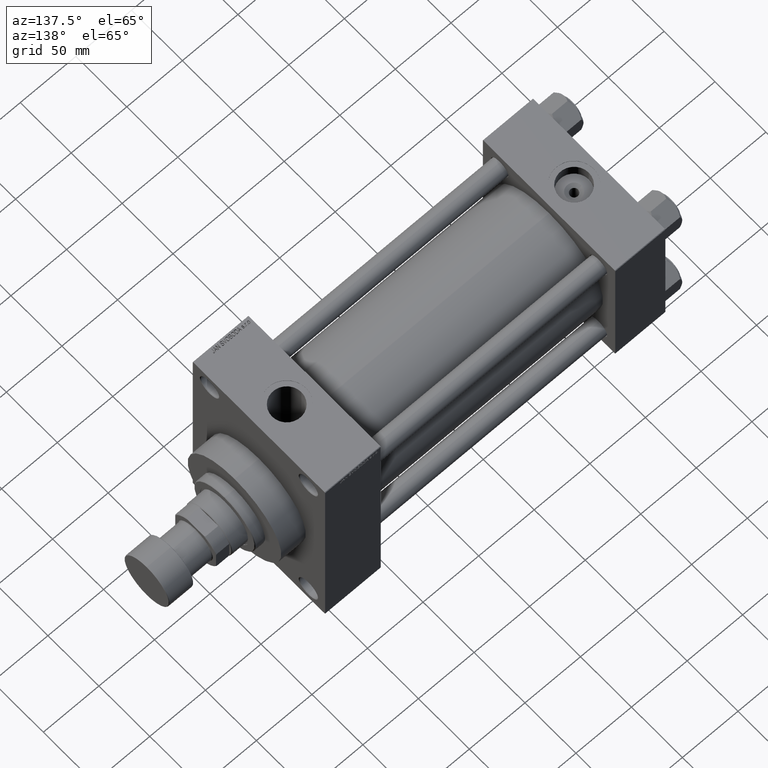
[diagram: clean part render]
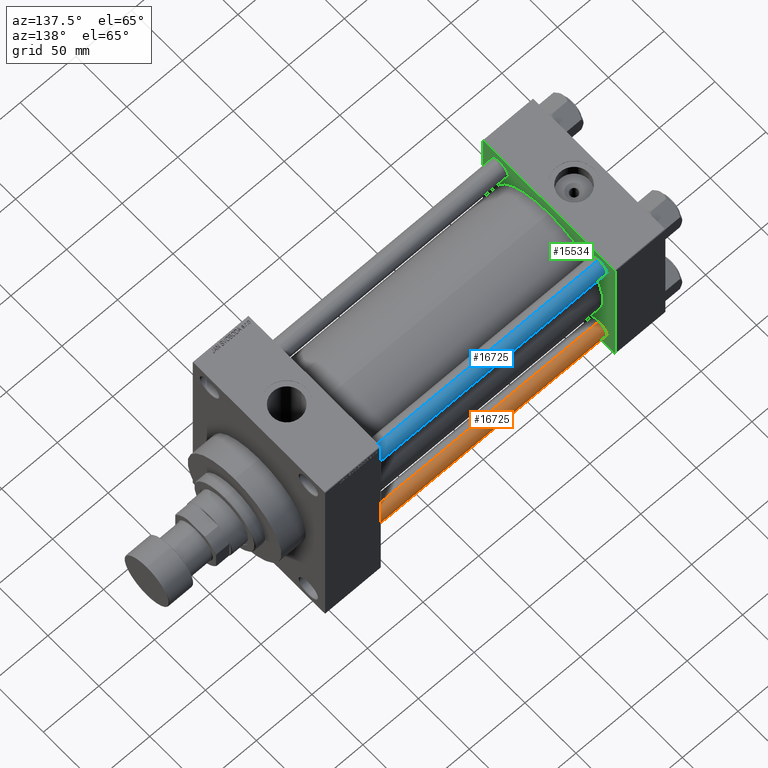
[diagram: same view with three faces highlighted in distinct colors, each labeled with its STEP entity id]
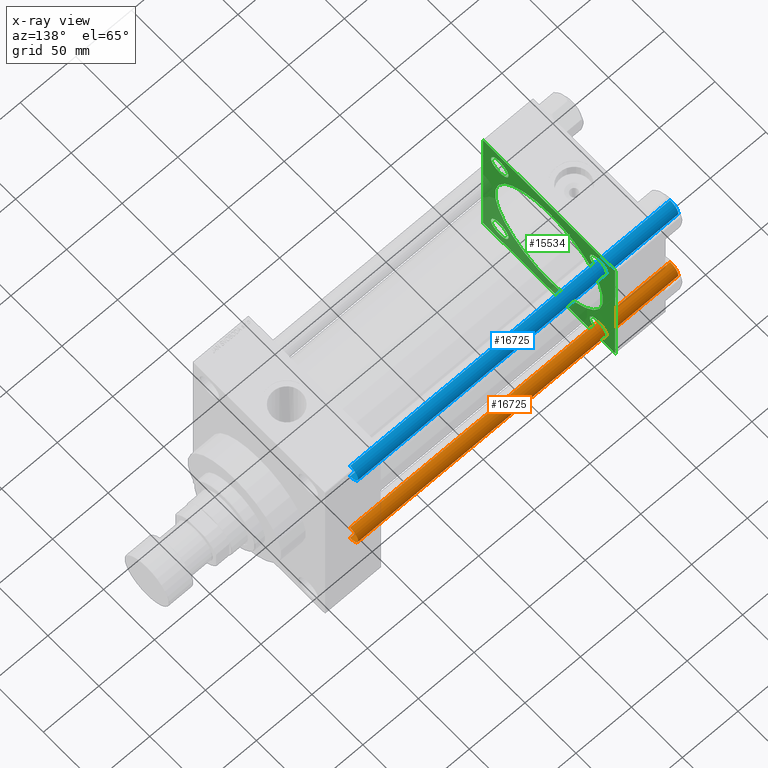
[diagram: x-ray of the same camera — body ghosted, the three highlighted faces saturated]
A machine part, auxiliary view with three faces highlighted in distinct colors.
The next image is the same camera in x-ray (body ghosted, the three faces saturated) — at least one of them is partly hidden behind the body in this view.
Their STEP definitions:

[orange] entity #16725 — the highlighted cylindrical surface (edge-blend (fillet) strip) has radius 8 mm, axis along (-1, -0, 0).
#728 = CARTESIAN_POINT ( 'NONE',  ( 0.000000000000000000, 0.000000000000000000, 289.0000000000000000 ) ) ;
#981 = CARTESIAN_POINT ( 'NONE',  ( -8.000000000000000000, 0.000000000000000000, 288.5000000000000000 ) ) ;
#1441 = CYLINDRICAL_SURFACE ( 'NONE', #22588, 8.000000000000000000 ) ;
#2026 = EDGE_CURVE ( 'NONE', #40422, #38068, #37278, .T. ) ;
#3119 = ORIENTED_EDGE ( 'NONE', *, *, #16728, .F. ) ;
#5101 = DIRECTION ( 'NONE',  ( -0.000000000000000000, -0.000000000000000000, -1.000000000000000000 ) ) ;
#8490 = CARTESIAN_POINT ( 'NONE',  ( -8.000000000000000000, 0.000000000000000000, 0.5000000000000004441 ) ) ;
#8494 = CIRCLE ( 'NONE', #41113, 8.000000000000000000 ) ;
#8529 = FACE_OUTER_BOUND ( 'NONE', #42590, .T. ) ;
#11513 = CARTESIAN_POINT ( 'NONE',  ( 8.000000000000000000, 9.797174393178825657E-16, 289.0000000000000000 ) ) ;
#12165 = DIRECTION ( 'NONE',  ( -1.000000000000000000, 0.000000000000000000, 0.000000000000000000 ) ) ;
#12834 = EDGE_CURVE ( 'NONE', #19216, #40422, #8494, .T. ) ;
#14920 = DIRECTION ( 'NONE',  ( -0.000000000000000000, -0.000000000000000000, -1.000000000000000000 ) ) ;
#15617 = VECTOR ( 'NONE', #46193, 1000.000000000000000 ) ;
#16725 = ADVANCED_FACE ( 'NONE', ( #8529 ), #1441, .T. ) ;
#16728 = EDGE_CURVE ( 'NONE', #19216, #44980, #30882, .T. ) ;
#18909 = DIRECTION ( 'NONE',  ( 0.000000000000000000, 0.000000000000000000, -1.000000000000000000 ) ) ;
#19216 = VERTEX_POINT ( 'NONE', #981 ) ;
#22588 = AXIS2_PLACEMENT_3D ( 'NONE', #728, #5101, #12165 ) ;
#23893 = DIRECTION ( 'NONE',  ( -0.000000000000000000, -0.000000000000000000, 1.000000000000000000 ) ) ;
#26890 = CARTESIAN_POINT ( 'NONE',  ( 8.000000000000000000, 9.797174393178825657E-16, 0.5000000000000004441 ) ) ;
#26903 = DIRECTION ( 'NONE',  ( 1.000000000000000000, 0.000000000000000000, 0.000000000000000000 ) ) ;
#28431 = EDGE_CURVE ( 'NONE', #38068, #44980, #41184, .T. ) ;
#30882 = LINE ( 'NONE', #31378, #15617 ) ;
#30976 = CARTESIAN_POINT ( 'NONE',  ( 8.000000000000000000, 9.797174393178825657E-16, 288.5000000000000000 ) ) ;
#31378 = CARTESIAN_POINT ( 'NONE',  ( -8.000000000000000000, 0.000000000000000000, 289.0000000000000000 ) ) ;
#33019 = ORIENTED_EDGE ( 'NONE', *, *, #2026, .T. ) ;
#34976 = AXIS2_PLACEMENT_3D ( 'NONE', #38238, #23893, #38000 ) ;
#35051 = ORIENTED_EDGE ( 'NONE', *, *, #12834, .T. ) ;
#37278 = LINE ( 'NONE', #11513, #40101 ) ;
#38000 = DIRECTION ( 'NONE',  ( 1.000000000000000000, 0.000000000000000000, 0.000000000000000000 ) ) ;
#38068 = VERTEX_POINT ( 'NONE', #26890 ) ;
#38076 = CARTESIAN_POINT ( 'NONE',  ( 0.000000000000000000, 0.000000000000000000, 288.5000000000000000 ) ) ;
#38238 = CARTESIAN_POINT ( 'NONE',  ( 0.000000000000000000, 0.000000000000000000, 0.5000000000000004441 ) ) ;
#40101 = VECTOR ( 'NONE', #14920, 1000.000000000000000 ) ;
#40422 = VERTEX_POINT ( 'NONE', #30976 ) ;
#41113 = AXIS2_PLACEMENT_3D ( 'NONE', #38076, #18909, #26903 ) ;
#41184 = CIRCLE ( 'NONE', #34976, 8.000000000000000000 ) ;
#42590 = EDGE_LOOP ( 'NONE', ( #35051, #33019, #46321, #3119 ) ) ;
#44980 = VERTEX_POINT ( 'NONE', #8490 ) ;
#46193 = DIRECTION ( 'NONE',  ( -0.000000000000000000, -0.000000000000000000, -1.000000000000000000 ) ) ;
#46321 = ORIENTED_EDGE ( 'NONE', *, *, #28431, .T. ) ;

[blue] entity #16725 — the highlighted cylindrical surface (edge-blend (fillet) strip) has radius 8 mm, axis along (1, -0, -0).
#728 = CARTESIAN_POINT ( 'NONE',  ( 0.000000000000000000, 0.000000000000000000, 289.0000000000000000 ) ) ;
#981 = CARTESIAN_POINT ( 'NONE',  ( -8.000000000000000000, 0.000000000000000000, 288.5000000000000000 ) ) ;
#1441 = CYLINDRICAL_SURFACE ( 'NONE', #22588, 8.000000000000000000 ) ;
#2026 = EDGE_CURVE ( 'NONE', #40422, #38068, #37278, .T. ) ;
#3119 = ORIENTED_EDGE ( 'NONE', *, *, #16728, .F. ) ;
#5101 = DIRECTION ( 'NONE',  ( -0.000000000000000000, -0.000000000000000000, -1.000000000000000000 ) ) ;
#8490 = CARTESIAN_POINT ( 'NONE',  ( -8.000000000000000000, 0.000000000000000000, 0.5000000000000004441 ) ) ;
#8494 = CIRCLE ( 'NONE', #41113, 8.000000000000000000 ) ;
#8529 = FACE_OUTER_BOUND ( 'NONE', #42590, .T. ) ;
#11513 = CARTESIAN_POINT ( 'NONE',  ( 8.000000000000000000, 9.797174393178825657E-16, 289.0000000000000000 ) ) ;
#12165 = DIRECTION ( 'NONE',  ( -1.000000000000000000, 0.000000000000000000, 0.000000000000000000 ) ) ;
#12834 = EDGE_CURVE ( 'NONE', #19216, #40422, #8494, .T. ) ;
#14920 = DIRECTION ( 'NONE',  ( -0.000000000000000000, -0.000000000000000000, -1.000000000000000000 ) ) ;
#15617 = VECTOR ( 'NONE', #46193, 1000.000000000000000 ) ;
#16725 = ADVANCED_FACE ( 'NONE', ( #8529 ), #1441, .T. ) ;
#16728 = EDGE_CURVE ( 'NONE', #19216, #44980, #30882, .T. ) ;
#18909 = DIRECTION ( 'NONE',  ( 0.000000000000000000, 0.000000000000000000, -1.000000000000000000 ) ) ;
#19216 = VERTEX_POINT ( 'NONE', #981 ) ;
#22588 = AXIS2_PLACEMENT_3D ( 'NONE', #728, #5101, #12165 ) ;
#23893 = DIRECTION ( 'NONE',  ( -0.000000000000000000, -0.000000000000000000, 1.000000000000000000 ) ) ;
#26890 = CARTESIAN_POINT ( 'NONE',  ( 8.000000000000000000, 9.797174393178825657E-16, 0.5000000000000004441 ) ) ;
#26903 = DIRECTION ( 'NONE',  ( 1.000000000000000000, 0.000000000000000000, 0.000000000000000000 ) ) ;
#28431 = EDGE_CURVE ( 'NONE', #38068, #44980, #41184, .T. ) ;
#30882 = LINE ( 'NONE', #31378, #15617 ) ;
#30976 = CARTESIAN_POINT ( 'NONE',  ( 8.000000000000000000, 9.797174393178825657E-16, 288.5000000000000000 ) ) ;
#31378 = CARTESIAN_POINT ( 'NONE',  ( -8.000000000000000000, 0.000000000000000000, 289.0000000000000000 ) ) ;
#33019 = ORIENTED_EDGE ( 'NONE', *, *, #2026, .T. ) ;
#34976 = AXIS2_PLACEMENT_3D ( 'NONE', #38238, #23893, #38000 ) ;
#35051 = ORIENTED_EDGE ( 'NONE', *, *, #12834, .T. ) ;
#37278 = LINE ( 'NONE', #11513, #40101 ) ;
#38000 = DIRECTION ( 'NONE',  ( 1.000000000000000000, 0.000000000000000000, 0.000000000000000000 ) ) ;
#38068 = VERTEX_POINT ( 'NONE', #26890 ) ;
#38076 = CARTESIAN_POINT ( 'NONE',  ( 0.000000000000000000, 0.000000000000000000, 288.5000000000000000 ) ) ;
#38238 = CARTESIAN_POINT ( 'NONE',  ( 0.000000000000000000, 0.000000000000000000, 0.5000000000000004441 ) ) ;
#40101 = VECTOR ( 'NONE', #14920, 1000.000000000000000 ) ;
#40422 = VERTEX_POINT ( 'NONE', #30976 ) ;
#41113 = AXIS2_PLACEMENT_3D ( 'NONE', #38076, #18909, #26903 ) ;
#41184 = CIRCLE ( 'NONE', #34976, 8.000000000000000000 ) ;
#42590 = EDGE_LOOP ( 'NONE', ( #35051, #33019, #46321, #3119 ) ) ;
#44980 = VERTEX_POINT ( 'NONE', #8490 ) ;
#46193 = DIRECTION ( 'NONE',  ( -0.000000000000000000, -0.000000000000000000, -1.000000000000000000 ) ) ;
#46321 = ORIENTED_EDGE ( 'NONE', *, *, #28431, .T. ) ;

[green] entity #15534 — the highlighted planar face has unit normal (-1, 0, 0).
#22 = DIRECTION ( 'NONE',  ( 0.000000000000000000, 0.000000000000000000, 1.000000000000000000 ) ) ;
#63 = EDGE_CURVE ( 'NONE', #34342, #30815, #27612, .T. ) ;
#109 = AXIS2_PLACEMENT_3D ( 'NONE', #45527, #34368, #12478 ) ;
#126 = EDGE_LOOP ( 'NONE', ( #38101, #43224, #31305, #12703, #26275, #5926, #22908, #29181 ) ) ;
#292 = CARTESIAN_POINT ( 'NONE',  ( 45.00000000000000000, -64.49999999999994316, -65.00000000000001421 ) ) ;
#429 = AXIS2_PLACEMENT_3D ( 'NONE', #24314, #9735, #16301 ) ;
#472 = ORIENTED_EDGE ( 'NONE', *, *, #40278, .F. ) ;
#765 = CIRCLE ( 'NONE', #18645, 53.00000000000000711 ) ;
#1144 = DIRECTION ( 'NONE',  ( 0.000000000000000000, -1.000000000000000000, -2.135044278125300850E-16 ) ) ;
#1181 = DIRECTION ( 'NONE',  ( -1.000000000000000000, 0.000000000000000000, -0.000000000000000000 ) ) ;
#1386 = VECTOR ( 'NONE', #38642, 1000.000000000000114 ) ;
#1702 = CIRCLE ( 'NONE', #4832, 8.500000000000063949 ) ;
#3098 = VERTEX_POINT ( 'NONE', #39420 ) ;
#3216 = EDGE_LOOP ( 'NONE', ( #15341, #35547 ) ) ;
#3692 = CARTESIAN_POINT ( 'NONE',  ( 45.00000000000000000, 48.44999999999999574, 48.44999999999999574 ) ) ;
#3964 = DIRECTION ( 'NONE',  ( 0.000000000000000000, 0.7071067811865474617, -0.7071067811865474617 ) ) ;
#4145 = EDGE_CURVE ( 'NONE', #16263, #15104, #28326, .T. ) ;
#4381 = DIRECTION ( 'NONE',  ( 0.000000000000000000, 0.000000000000000000, 1.000000000000000000 ) ) ;
#4832 = AXIS2_PLACEMENT_3D ( 'NONE', #36337, #32458, #36590 ) ;
#5435 = AXIS2_PLACEMENT_3D ( 'NONE', #15822, #31375, #4381 ) ;
#5926 = ORIENTED_EDGE ( 'NONE', *, *, #47714, .T. ) ;
#6627 = EDGE_CURVE ( 'NONE', #36814, #16263, #17360, .T. ) ;
#6651 = ORIENTED_EDGE ( 'NONE', *, *, #14576, .F. ) ;
#6927 = CARTESIAN_POINT ( 'NONE',  ( 45.00000000000000000, 64.49999999999997158, 65.00000000000001421 ) ) ;
#7156 = FACE_BOUND ( 'NONE', #44407, .T. ) ;
#7300 = CARTESIAN_POINT ( 'NONE',  ( 45.00000000000000000, -48.44999999999998153, 48.45000000000000995 ) ) ;
#7306 = CARTESIAN_POINT ( 'NONE',  ( 45.00000000000000000, -64.49999999999994316, -65.00000000000001421 ) ) ;
#8121 = CARTESIAN_POINT ( 'NONE',  ( 44.99999999999998579, -2.602085213965210642E-15, 53.00000000000000711 ) ) ;
#8544 = ORIENTED_EDGE ( 'NONE', *, *, #27978, .T. ) ;
#9727 = DIRECTION ( 'NONE',  ( 0.000000000000000000, 0.000000000000000000, 1.000000000000000000 ) ) ;
#9728 = CARTESIAN_POINT ( 'NONE',  ( 45.00000000000000000, 65.00000000000000000, -64.49999999999995737 ) ) ;
#9735 = DIRECTION ( 'NONE',  ( -1.000000000000000000, 0.000000000000000000, -0.000000000000000000 ) ) ;
#10109 = CIRCLE ( 'NONE', #5435, 8.500000000000063949 ) ;
#10801 = PLANE ( 'NONE',  #34973 ) ;
#10806 = VECTOR ( 'NONE', #46125, 1000.000000000000000 ) ;
#11025 = EDGE_LOOP ( 'NONE', ( #8544, #24483 ) ) ;
#11973 = LINE ( 'NONE', #292, #22334 ) ;
#12478 = DIRECTION ( 'NONE',  ( 0.000000000000000000, 0.000000000000000000, 1.000000000000000000 ) ) ;
#12703 = ORIENTED_EDGE ( 'NONE', *, *, #6627, .T. ) ;
#13011 = CARTESIAN_POINT ( 'NONE',  ( 45.00000000000000000, 65.00000000000000000, 65.00000000000001421 ) ) ;
#13782 = CARTESIAN_POINT ( 'NONE',  ( 45.00000000000000000, -64.49999999999997158, 64.99999999999998579 ) ) ;
#13816 = AXIS2_PLACEMENT_3D ( 'NONE', #45949, #26989, #41803 ) ;
#14021 = LINE ( 'NONE', #24709, #31669 ) ;
#14576 = EDGE_CURVE ( 'NONE', #29376, #17198, #765, .T. ) ;
#14890 = CARTESIAN_POINT ( 'NONE',  ( 44.99999999999998579, 3.888542821515762466E-15, -53.00000000000000711 ) ) ;
#14941 = CARTESIAN_POINT ( 'NONE',  ( 45.00000000000000000, 0.000000000000000000, 0.000000000000000000 ) ) ;
#15104 = VERTEX_POINT ( 'NONE', #13782 ) ;
#15341 = ORIENTED_EDGE ( 'NONE', *, *, #63, .T. ) ;
#15489 = CARTESIAN_POINT ( 'NONE',  ( 45.00000000000000000, -65.00000000000000000, 64.99999999999998579 ) ) ;
#15534 = ADVANCED_FACE ( 'NONE', ( #45697, #41557, #32923, #40685, #7156, #23098 ), #10801, .F. ) ;
#15822 = CARTESIAN_POINT ( 'NONE',  ( 45.00000000000000000, 48.44999999999999574, -48.44999999999999574 ) ) ;
#15836 = ORIENTED_EDGE ( 'NONE', *, *, #29353, .T. ) ;
#16263 = VERTEX_POINT ( 'NONE', #6927 ) ;
#16301 = DIRECTION ( 'NONE',  ( 0.000000000000000000, 0.000000000000000000, 1.000000000000000000 ) ) ;
#16522 = CARTESIAN_POINT ( 'NONE',  ( 44.99999999999998579, -2.602085213965210642E-15, 0.000000000000000000 ) ) ;
#17198 = VERTEX_POINT ( 'NONE', #8121 ) ;
#17317 = EDGE_CURVE ( 'NONE', #25874, #31103, #40483, .T. ) ;
#17360 = LINE ( 'NONE', #23930, #39484 ) ;
#18328 = DIRECTION ( 'NONE',  ( -0.000000000000000000, 0.000000000000000000, 1.000000000000000000 ) ) ;
#18415 = EDGE_CURVE ( 'NONE', #40862, #3098, #47917, .T. ) ;
#18605 = EDGE_CURVE ( 'NONE', #18937, #44780, #22837, .T. ) ;
#18645 = AXIS2_PLACEMENT_3D ( 'NONE', #43009, #40071, #9727 ) ;
#18937 = VERTEX_POINT ( 'NONE', #46987 ) ;
#20636 = DIRECTION ( 'NONE',  ( 1.000000000000000000, -0.000000000000000000, 0.000000000000000000 ) ) ;
#20718 = ORIENTED_EDGE ( 'NONE', *, *, #18415, .T. ) ;
#22334 = VECTOR ( 'NONE', #3964, 1000.000000000000114 ) ;
#22779 = DIRECTION ( 'NONE',  ( 0.000000000000000000, 0.000000000000000000, -1.000000000000000000 ) ) ;
#22837 = LINE ( 'NONE', #34974, #23106 ) ;
#22873 = EDGE_CURVE ( 'NONE', #3098, #40862, #28569, .T. ) ;
#22908 = ORIENTED_EDGE ( 'NONE', *, *, #30219, .T. ) ;
#23074 = CARTESIAN_POINT ( 'NONE',  ( 45.00000000000000000, -48.44999999999998153, -56.95000000000006679 ) ) ;
#23098 = FACE_OUTER_BOUND ( 'NONE', #126, .T. ) ;
#23106 = VECTOR ( 'NONE', #1144, 1000.000000000000000 ) ;
#23930 = CARTESIAN_POINT ( 'NONE',  ( 45.00000000000000000, 64.49999999999997158, 65.00000000000001421 ) ) ;
#24274 = EDGE_LOOP ( 'NONE', ( #31416, #15836 ) ) ;
#24287 = EDGE_CURVE ( 'NONE', #18937, #32124, #35720, .T. ) ;
#24314 = CARTESIAN_POINT ( 'NONE',  ( 45.00000000000000000, -48.44999999999998153, -48.45000000000000995 ) ) ;
#24483 = ORIENTED_EDGE ( 'NONE', *, *, #32790, .T. ) ;
#24526 = DIRECTION ( 'NONE',  ( 0.000000000000000000, 0.000000000000000000, 1.000000000000000000 ) ) ;
#24709 = CARTESIAN_POINT ( 'NONE',  ( 45.00000000000000000, -65.00000000000000000, 64.49999999999998579 ) ) ;
#25157 = CARTESIAN_POINT ( 'NONE',  ( 45.00000000000000000, 48.44999999999999574, 39.94999999999993179 ) ) ;
#25302 = DIRECTION ( 'NONE',  ( -1.000000000000000000, 0.000000000000000000, -0.000000000000000000 ) ) ;
#25395 = EDGE_CURVE ( 'NONE', #36814, #32124, #31310, .T. ) ;
#25436 = VECTOR ( 'NONE', #43378, 1000.000000000000000 ) ;
#25773 = DIRECTION ( 'NONE',  ( -1.000000000000000000, 0.000000000000000000, -0.000000000000000000 ) ) ;
#25874 = VERTEX_POINT ( 'NONE', #25157 ) ;
#26261 = CARTESIAN_POINT ( 'NONE',  ( 45.00000000000000000, -65.00000000000000000, -64.49999999999995737 ) ) ;
#26275 = ORIENTED_EDGE ( 'NONE', *, *, #4145, .T. ) ;
#26989 = DIRECTION ( 'NONE',  ( -1.000000000000000000, 0.000000000000000000, -0.000000000000000000 ) ) ;
#27197 = AXIS2_PLACEMENT_3D ( 'NONE', #3692, #33358, #22 ) ;
#27612 = CIRCLE ( 'NONE', #429, 8.500000000000063949 ) ;
#27978 = EDGE_CURVE ( 'NONE', #36979, #33746, #10109, .T. ) ;
#28326 = LINE ( 'NONE', #13011, #25436 ) ;
#28489 = VERTEX_POINT ( 'NONE', #46503 ) ;
#28569 = CIRCLE ( 'NONE', #13816, 8.500000000000063949 ) ;
#28850 = DIRECTION ( 'NONE',  ( -0.000000000000000000, -0.7071067811865672237, -0.7071067811865279218 ) ) ;
#29181 = ORIENTED_EDGE ( 'NONE', *, *, #46764, .T. ) ;
#29353 = EDGE_CURVE ( 'NONE', #31103, #25874, #35737, .T. ) ;
#29376 = VERTEX_POINT ( 'NONE', #14890 ) ;
#29840 = CIRCLE ( 'NONE', #37580, 53.00000000000000711 ) ;
#30219 = EDGE_CURVE ( 'NONE', #28489, #41698, #38062, .T. ) ;
#30815 = VERTEX_POINT ( 'NONE', #39326 ) ;
#30855 = CIRCLE ( 'NONE', #33957, 8.500000000000063949 ) ;
#31103 = VERTEX_POINT ( 'NONE', #36109 ) ;
#31305 = ORIENTED_EDGE ( 'NONE', *, *, #25395, .F. ) ;
#31310 = LINE ( 'NONE', #31542, #10806 ) ;
#31375 = DIRECTION ( 'NONE',  ( -1.000000000000000000, 0.000000000000000000, -0.000000000000000000 ) ) ;
#31416 = ORIENTED_EDGE ( 'NONE', *, *, #17317, .T. ) ;
#31467 = DIRECTION ( 'NONE',  ( 0.000000000000000000, -0.7071067811865474617, 0.7071067811865474617 ) ) ;
#31542 = CARTESIAN_POINT ( 'NONE',  ( 45.00000000000000000, 65.00000000000000000, 65.00000000000001421 ) ) ;
#31669 = VECTOR ( 'NONE', #28850, 1000.000000000000000 ) ;
#32124 = VERTEX_POINT ( 'NONE', #40244 ) ;
#32458 = DIRECTION ( 'NONE',  ( -1.000000000000000000, 0.000000000000000000, -0.000000000000000000 ) ) ;
#32790 = EDGE_CURVE ( 'NONE', #33746, #36979, #1702, .T. ) ;
#32828 = DIRECTION ( 'NONE',  ( 0.000000000000000000, 0.000000000000000000, 1.000000000000000000 ) ) ;
#32923 = FACE_BOUND ( 'NONE', #44751, .T. ) ;
#33358 = DIRECTION ( 'NONE',  ( -1.000000000000000000, 0.000000000000000000, -0.000000000000000000 ) ) ;
#33746 = VERTEX_POINT ( 'NONE', #37608 ) ;
#33957 = AXIS2_PLACEMENT_3D ( 'NONE', #36236, #25302, #40122 ) ;
#34342 = VERTEX_POINT ( 'NONE', #23074 ) ;
#34368 = DIRECTION ( 'NONE',  ( -1.000000000000000000, 0.000000000000000000, -0.000000000000000000 ) ) ;
#34973 = AXIS2_PLACEMENT_3D ( 'NONE', #14941, #1181, #18328 ) ;
#34974 = CARTESIAN_POINT ( 'NONE',  ( 45.00000000000000000, 65.00000000000000000, -64.99999999999998579 ) ) ;
#35547 = ORIENTED_EDGE ( 'NONE', *, *, #47074, .T. ) ;
#35720 = LINE ( 'NONE', #9728, #1386 ) ;
#35737 = CIRCLE ( 'NONE', #27197, 8.500000000000063949 ) ;
#36109 = CARTESIAN_POINT ( 'NONE',  ( 45.00000000000000000, 48.44999999999999574, 56.95000000000005969 ) ) ;
#36150 = CARTESIAN_POINT ( 'NONE',  ( 45.00000000000000000, 48.44999999999999574, -56.95000000000005969 ) ) ;
#36236 = CARTESIAN_POINT ( 'NONE',  ( 45.00000000000000000, -48.44999999999998153, -48.45000000000000995 ) ) ;
#36337 = CARTESIAN_POINT ( 'NONE',  ( 45.00000000000000000, 48.44999999999999574, -48.44999999999999574 ) ) ;
#36590 = DIRECTION ( 'NONE',  ( 0.000000000000000000, 0.000000000000000000, 1.000000000000000000 ) ) ;
#36814 = VERTEX_POINT ( 'NONE', #41752 ) ;
#36979 = VERTEX_POINT ( 'NONE', #36150 ) ;
#37580 = AXIS2_PLACEMENT_3D ( 'NONE', #16522, #20636, #24526 ) ;
#37608 = CARTESIAN_POINT ( 'NONE',  ( 45.00000000000000000, 48.44999999999999574, -39.94999999999993179 ) ) ;
#37858 = AXIS2_PLACEMENT_3D ( 'NONE', #7300, #25773, #32828 ) ;
#38062 = LINE ( 'NONE', #15489, #45117 ) ;
#38101 = ORIENTED_EDGE ( 'NONE', *, *, #18605, .F. ) ;
#38642 = DIRECTION ( 'NONE',  ( -0.000000000000000000, 0.7071067811865474617, 0.7071067811865474617 ) ) ;
#39326 = CARTESIAN_POINT ( 'NONE',  ( 45.00000000000000000, -48.44999999999998153, -39.94999999999994600 ) ) ;
#39420 = CARTESIAN_POINT ( 'NONE',  ( 45.00000000000000000, -48.44999999999998153, 39.94999999999994600 ) ) ;
#39484 = VECTOR ( 'NONE', #31467, 1000.000000000000114 ) ;
#40071 = DIRECTION ( 'NONE',  ( 1.000000000000000000, -0.000000000000000000, 0.000000000000000000 ) ) ;
#40122 = DIRECTION ( 'NONE',  ( 0.000000000000000000, 0.000000000000000000, 1.000000000000000000 ) ) ;
#40244 = CARTESIAN_POINT ( 'NONE',  ( 45.00000000000000000, 65.00000000000000000, -64.49999999999995737 ) ) ;
#40278 = EDGE_CURVE ( 'NONE', #17198, #29376, #29840, .T. ) ;
#40483 = CIRCLE ( 'NONE', #109, 8.500000000000063949 ) ;
#40685 = FACE_BOUND ( 'NONE', #24274, .T. ) ;
#40862 = VERTEX_POINT ( 'NONE', #44965 ) ;
#41557 = FACE_BOUND ( 'NONE', #11025, .T. ) ;
#41664 = ORIENTED_EDGE ( 'NONE', *, *, #22873, .T. ) ;
#41698 = VERTEX_POINT ( 'NONE', #26261 ) ;
#41752 = CARTESIAN_POINT ( 'NONE',  ( 45.00000000000000000, 65.00000000000000000, 64.49999999999998579 ) ) ;
#41803 = DIRECTION ( 'NONE',  ( 0.000000000000000000, 0.000000000000000000, 1.000000000000000000 ) ) ;
#43009 = CARTESIAN_POINT ( 'NONE',  ( 44.99999999999998579, -2.602085213965210642E-15, 0.000000000000000000 ) ) ;
#43224 = ORIENTED_EDGE ( 'NONE', *, *, #24287, .T. ) ;
#43378 = DIRECTION ( 'NONE',  ( 0.000000000000000000, -1.000000000000000000, -2.135044278125300850E-16 ) ) ;
#44407 = EDGE_LOOP ( 'NONE', ( #472, #6651 ) ) ;
#44751 = EDGE_LOOP ( 'NONE', ( #41664, #20718 ) ) ;
#44780 = VERTEX_POINT ( 'NONE', #7306 ) ;
#44965 = CARTESIAN_POINT ( 'NONE',  ( 45.00000000000000000, -48.44999999999998153, 56.95000000000006679 ) ) ;
#45117 = VECTOR ( 'NONE', #22779, 1000.000000000000000 ) ;
#45527 = CARTESIAN_POINT ( 'NONE',  ( 45.00000000000000000, 48.44999999999999574, 48.44999999999999574 ) ) ;
#45697 = FACE_BOUND ( 'NONE', #3216, .T. ) ;
#45949 = CARTESIAN_POINT ( 'NONE',  ( 45.00000000000000000, -48.44999999999998153, 48.45000000000000995 ) ) ;
#46125 = DIRECTION ( 'NONE',  ( 0.000000000000000000, 0.000000000000000000, -1.000000000000000000 ) ) ;
#46503 = CARTESIAN_POINT ( 'NONE',  ( 45.00000000000000000, -65.00000000000000000, 64.49999999999998579 ) ) ;
#46764 = EDGE_CURVE ( 'NONE', #41698, #44780, #11973, .T. ) ;
#46987 = CARTESIAN_POINT ( 'NONE',  ( 45.00000000000000000, 64.49999999999997158, -64.99999999999998579 ) ) ;
#47074 = EDGE_CURVE ( 'NONE', #30815, #34342, #30855, .T. ) ;
#47714 = EDGE_CURVE ( 'NONE', #15104, #28489, #14021, .T. ) ;
#47917 = CIRCLE ( 'NONE', #37858, 8.500000000000063949 ) ;